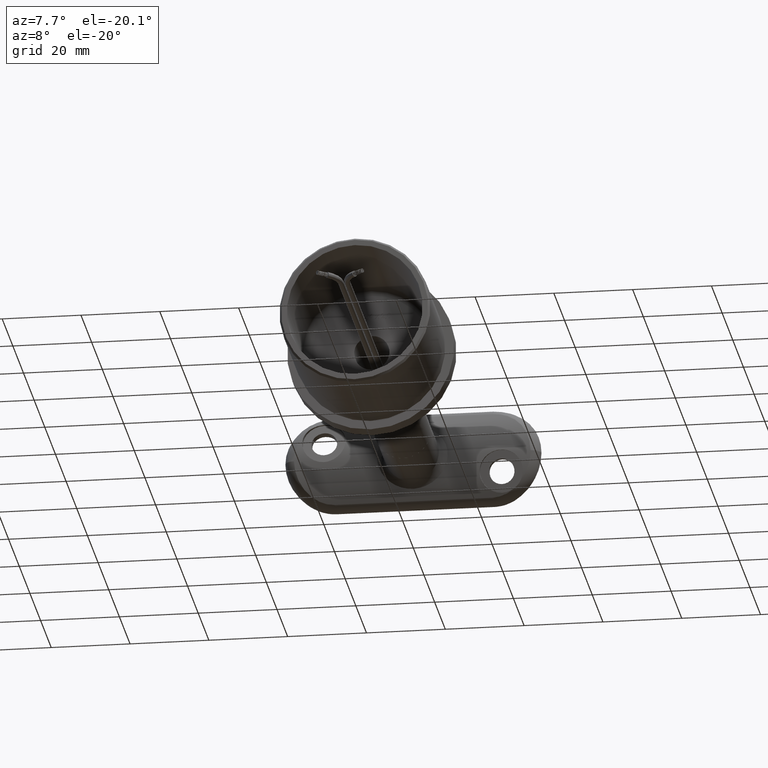
[diagram: clean part render]
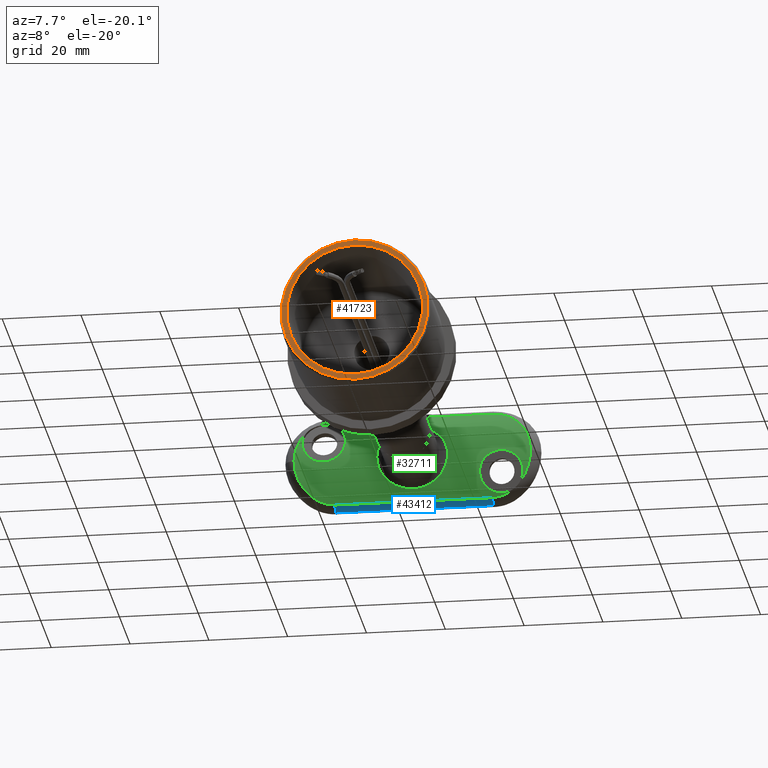
[diagram: same view with three faces highlighted in distinct colors, each labeled with its STEP entity id]
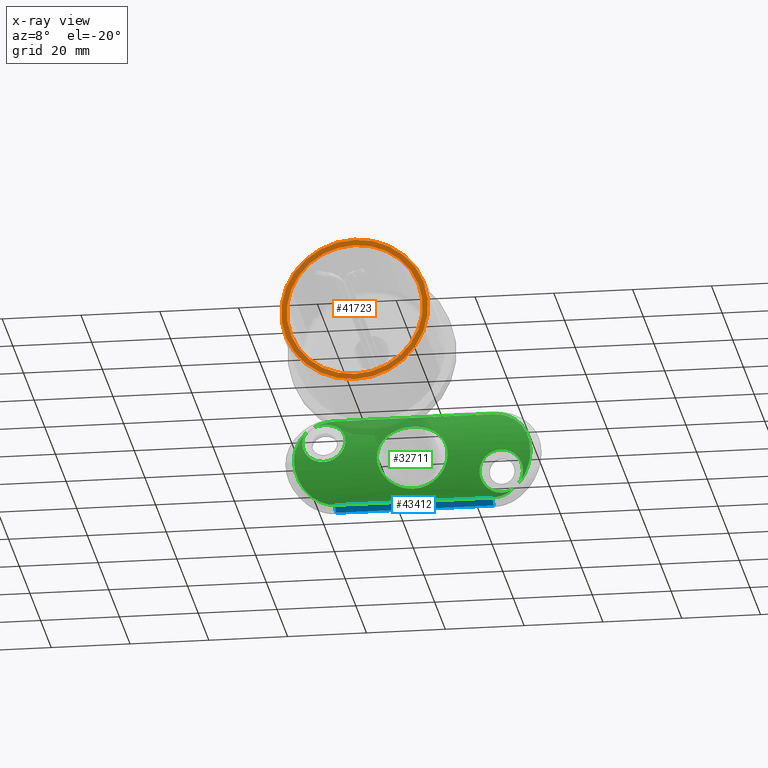
[diagram: x-ray of the same camera — body ghosted, the three highlighted faces saturated]
A machine part, auxiliary view with three faces highlighted in distinct colors.
The next image is the same camera in x-ray (body ghosted, the three faces saturated) — at least one of them is partly hidden behind the body in this view.
Their STEP definitions:

[orange] entity #41723 — the highlighted planar face has unit normal (0, -1, 0).
#365 = AXIS2_PLACEMENT_3D ( 'NONE', #17922, #21964, #14045 ) ;
#554 = EDGE_LOOP ( 'NONE', ( #36121 ) ) ;
#813 = DIRECTION ( 'NONE',  ( 0.0000000000000000000, 0.0000000000000000000, -1.000000000000000000 ) ) ;
#2994 = ORIENTED_EDGE ( 'NONE', *, *, #28522, .F. ) ;
#6575 = FACE_OUTER_BOUND ( 'NONE', #554, .T. ) ;
#8799 = CIRCLE ( 'NONE', #16784, 17.25000000000000000 ) ;
#13953 = DIRECTION ( 'NONE',  ( 0.0000000000000000000, -1.000000000000000000, -0.0000000000000000000 ) ) ;
#14045 = DIRECTION ( 'NONE',  ( 0.0000000000000000000, 0.0000000000000000000, -1.000000000000000000 ) ) ;
#15799 = EDGE_LOOP ( 'NONE', ( #2994 ) ) ;
#16784 = AXIS2_PLACEMENT_3D ( 'NONE', #46777, #46593, #813 ) ;
#17922 = CARTESIAN_POINT ( 'NONE',  ( 0.0000000000000000000, -29.99999999999999600, 0.0000000000000000000 ) ) ;
#21964 = DIRECTION ( 'NONE',  ( -0.0000000000000000000, -1.000000000000000000, -0.0000000000000000000 ) ) ;
#26864 = VERTEX_POINT ( 'NONE', #42041 ) ;
#28522 = EDGE_CURVE ( 'NONE', #26864, #26864, #8799, .T. ) ;
#30218 = AXIS2_PLACEMENT_3D ( 'NONE', #48009, #13953, #43570 ) ;
#31227 = PLANE ( 'NONE',  #30218 ) ;
#33007 = EDGE_CURVE ( 'NONE', #53824, #53824, #34265, .T. ) ;
#34265 = CIRCLE ( 'NONE', #365, 18.64999999999999900 ) ;
#36121 = ORIENTED_EDGE ( 'NONE', *, *, #33007, .T. ) ;
#41723 = ADVANCED_FACE ( 'NONE', ( #6575, #50016 ), #31227, .T. ) ;
#42041 = CARTESIAN_POINT ( 'NONE',  ( 0.0000000000000000000, -29.99999999999999600, -17.25000000000000000 ) ) ;
#43570 = DIRECTION ( 'NONE',  ( 0.0000000000000000000, 0.0000000000000000000, -1.000000000000000000 ) ) ;
#46074 = CARTESIAN_POINT ( 'NONE',  ( 0.0000000000000000000, -29.99999999999999600, -18.64999999999999900 ) ) ;
#46593 = DIRECTION ( 'NONE',  ( -0.0000000000000000000, -1.000000000000000000, -0.0000000000000000000 ) ) ;
#46777 = CARTESIAN_POINT ( 'NONE',  ( 0.0000000000000000000, -29.99999999999999600, 0.0000000000000000000 ) ) ;
#48009 = CARTESIAN_POINT ( 'NONE',  ( 18.64999999999999900, -29.99999999999999600, 0.0000000000000000000 ) ) ;
#50016 = FACE_BOUND ( 'NONE', #15799, .T. ) ;
#53824 = VERTEX_POINT ( 'NONE', #46074 ) ;

[blue] entity #43412 — the highlighted cylindrical surface (edge-blend (fillet) strip) has radius 2.5 mm, axis along (-1, -0, -0).
#221 = DIRECTION ( 'NONE',  ( -1.000000000000000000, 0.0000000000000000000, 0.0000000000000000000 ) ) ;
#865 = DIRECTION ( 'NONE',  ( 0.0000000000000000000, 0.0000000000000000000, -1.000000000000000000 ) ) ;
#4052 = EDGE_CURVE ( 'NONE', #28528, #50793, #48681, .T. ) ;
#4545 = CARTESIAN_POINT ( 'NONE',  ( 9.999999999999998200, 2.506685687123322700, -20.00000000000000400 ) ) ;
#5467 = ORIENTED_EDGE ( 'NONE', *, *, #17825, .F. ) ;
#9423 = CARTESIAN_POINT ( 'NONE',  ( 11.17924528301886700, 0.3022854143784315400, -20.00000000000000400 ) ) ;
#11109 = CYLINDRICAL_SURFACE ( 'NONE', #19717, 2.500000000000000400 ) ;
#13382 = LINE ( 'NONE', #38410, #21318 ) ;
#13645 = ORIENTED_EDGE ( 'NONE', *, *, #14682, .F. ) ;
#13880 = CARTESIAN_POINT ( 'NONE',  ( 12.49999999999999800, 2.506685687123324500, 20.00000000000000000 ) ) ;
#13899 = DIRECTION ( 'NONE',  ( -1.000000000000000000, 0.0000000000000000000, 0.0000000000000000000 ) ) ;
#14682 = EDGE_CURVE ( 'NONE', #31779, #50793, #13382, .T. ) ;
#16243 = CIRCLE ( 'NONE', #40645, 2.500000000000000400 ) ;
#16949 = CARTESIAN_POINT ( 'NONE',  ( 9.999999999999998200, 2.506685687123321400, 32.50000000000000000 ) ) ;
#17825 = EDGE_CURVE ( 'NONE', #28528, #31638, #21782, .T. ) ;
#19371 = EDGE_LOOP ( 'NONE', ( #52197, #5467, #49297, #13645 ) ) ;
#19717 = AXIS2_PLACEMENT_3D ( 'NONE', #16949, #29613, #221 ) ;
#21318 = VECTOR ( 'NONE', #34354, 1000.000000000000000 ) ;
#21782 = LINE ( 'NONE', #22782, #38903 ) ;
#22782 = CARTESIAN_POINT ( 'NONE',  ( 11.17924528301886500, 0.3022854143784302600, 32.50000000000000000 ) ) ;
#25368 = EDGE_CURVE ( 'NONE', #31779, #31638, #16243, .T. ) ;
#28528 = VERTEX_POINT ( 'NONE', #9423 ) ;
#29613 = DIRECTION ( 'NONE',  ( -0.0000000000000000000, -0.0000000000000000000, -1.000000000000000000 ) ) ;
#31638 = VERTEX_POINT ( 'NONE', #37625 ) ;
#31779 = VERTEX_POINT ( 'NONE', #13880 ) ;
#31793 = DIRECTION ( 'NONE',  ( 0.0000000000000000000, 0.0000000000000000000, 1.000000000000000000 ) ) ;
#32458 = CARTESIAN_POINT ( 'NONE',  ( 12.49999999999999800, 2.506685687123324500, -20.00000000000000400 ) ) ;
#34354 = DIRECTION ( 'NONE',  ( 0.0000000000000000000, 0.0000000000000000000, -1.000000000000000000 ) ) ;
#37625 = CARTESIAN_POINT ( 'NONE',  ( 11.17924528301886700, 0.3022854143784315400, 20.00000000000000000 ) ) ;
#38410 = CARTESIAN_POINT ( 'NONE',  ( 12.49999999999999800, 2.506685687123324500, 32.50000000000000000 ) ) ;
#38574 = CARTESIAN_POINT ( 'NONE',  ( 9.999999999999998200, 2.506685687123321800, 20.00000000000000000 ) ) ;
#38903 = VECTOR ( 'NONE', #31793, 1000.000000000000000 ) ;
#38945 = DIRECTION ( 'NONE',  ( -0.0000000000000000000, 0.0000000000000000000, 1.000000000000000000 ) ) ;
#40645 = AXIS2_PLACEMENT_3D ( 'NONE', #38574, #865, #13899 ) ;
#42627 = DIRECTION ( 'NONE',  ( 1.000000000000000000, 0.0000000000000000000, 0.0000000000000000000 ) ) ;
#43412 = ADVANCED_FACE ( 'NONE', ( #45302 ), #11109, .T. ) ;
#45302 = FACE_OUTER_BOUND ( 'NONE', #19371, .T. ) ;
#48681 = CIRCLE ( 'NONE', #52014, 2.500000000000000400 ) ;
#49297 = ORIENTED_EDGE ( 'NONE', *, *, #4052, .T. ) ;
#50793 = VERTEX_POINT ( 'NONE', #32458 ) ;
#52014 = AXIS2_PLACEMENT_3D ( 'NONE', #4545, #38945, #42627 ) ;
#52197 = ORIENTED_EDGE ( 'NONE', *, *, #25368, .T. ) ;

[green] entity #32711 — the highlighted cylindrical surface (partial cylindrical patch) has radius 23.7 mm, axis along (-1, -0, -0).
#17 = CARTESIAN_POINT ( 'NONE',  ( -9.370187996682782100, -0.5690049590426146100, -25.45398073234969200 ) ) ;
#271 = CARTESIAN_POINT ( 'NONE',  ( 8.218265259046328100, -1.036237951071030000, -26.80927702822409100 ) ) ;
#347 = CARTESIAN_POINT ( 'NONE',  ( 9.961023141438030100, -0.3054140723247031900, 20.89677686096019100 ) ) ;
#390 = CARTESIAN_POINT ( 'NONE',  ( -3.862101540547632000, -2.185516348407287300, -17.09727149796646000 ) ) ;
#537 = CARTESIAN_POINT ( 'NONE',  ( 4.968030698272814400, -1.974579828743330700, -7.215625940148811400 ) ) ;
#717 = CARTESIAN_POINT ( 'NONE',  ( 5.837926458261642400, -1.772185946377429900, 17.06940875585207000 ) ) ;
#1069 = CARTESIAN_POINT ( 'NONE',  ( 9.905594503641438600, -0.3320655028294224900, 24.65932854693940600 ) ) ;
#1073 = CARTESIAN_POINT ( 'NONE',  ( 7.751731519603566800, -1.198179809334370700, 27.16979874977519000 ) ) ;
#1253 = CARTESIAN_POINT ( 'NONE',  ( 0.1303266919078817100, -2.500373700690121700, 19.79406846555928800 ) ) ;
#1620 = CARTESIAN_POINT ( 'NONE',  ( 7.476314322400269500, -1.291900112270155200, 27.44228244790018700 ) ) ;
#2170 = CARTESIAN_POINT ( 'NONE',  ( 8.014227332648181000, -1.103859761499459400, 26.97191979512733800 ) ) ;
#3134 = CARTESIAN_POINT ( 'NONE',  ( -1.427006138159055700, -2.458640998651842900, 8.871318446048977800 ) ) ;
#3310 = CARTESIAN_POINT ( 'NONE',  ( 3.552394138635237100, -2.233680693875239600, 8.139554048834620300 ) ) ;
#3483 = CARTESIAN_POINT ( 'NONE',  ( 2.784013627388787400, -2.341598247301693600, 8.500133982354100200 ) ) ;
#3957 = CARTESIAN_POINT ( 'NONE',  ( 6.315412041614559200, -1.645155223349698000, -28.25753571695142300 ) ) ;
#4047 = CARTESIAN_POINT ( 'NONE',  ( -7.664185970871398200, -1.228563436823041600, -17.77408746815163100 ) ) ;
#4114 = CARTESIAN_POINT ( 'NONE',  ( 9.916560389076327200, -0.3282711105603398100, -24.66578054736753200 ) ) ;
#4183 = CARTESIAN_POINT ( 'NONE',  ( 4.854836688620381800, -1.999916146307695500, 16.98995641155992000 ) ) ;
#4492 = CARTESIAN_POINT ( 'NONE',  ( -1.414169896664826000, -2.468012762435230800, 29.93975543317519700 ) ) ;
#4554 = CARTESIAN_POINT ( 'NONE',  ( 9.603017931148079000, -0.4680232839582748100, 19.95654763865557500 ) ) ;
#4561 = CARTESIAN_POINT ( 'NONE',  ( 8.049428857506830700, -1.091431838228508900, 2.265757950814117900 ) ) ;
#4734 = CARTESIAN_POINT ( 'NONE',  ( 8.250110507916552600, -1.017941282579681600, -1.136081012000657300 ) ) ;
#4761 = CARTESIAN_POINT ( 'NONE',  ( -9.686022297465177300, -0.4307090813889881700, -24.86482861441113800 ) ) ;
#4913 = EDGE_CURVE ( 'NONE', #21416, #38604, #6445, .T. ) ;
#4952 = CARTESIAN_POINT ( 'NONE',  ( 0.4845863638988725500, -2.496248905460648700, -23.74325496155335500 ) ) ;
#5039 = CARTESIAN_POINT ( 'NONE',  ( -7.441043657384822700, -1.303242206625867100, 27.46981969670581200 ) ) ;
#5097 = CARTESIAN_POINT ( 'NONE',  ( 3.639473031669293100, -2.221126179565911400, 27.85252258307059800 ) ) ;
#5131 = CARTESIAN_POINT ( 'NONE',  ( -0.3699238076160045200, -2.497754405056258800, -25.58575428268033400 ) ) ;
#5282 = CARTESIAN_POINT ( 'NONE',  ( 11.17924528301887200, 0.3022854143784315400, 21.00006738519948600 ) ) ;
#5286 = CARTESIAN_POINT ( 'NONE',  ( 0.7135294619659117200, -2.490425030393305800, 18.96567124585279300 ) ) ;
#5460 = CARTESIAN_POINT ( 'NONE',  ( 10.23956368285324800, -0.1742016788222979800, 24.01994789659587300 ) ) ;
#5464 = CARTESIAN_POINT ( 'NONE',  ( 5.945737943505376300, -1.744424834783779400, 27.91039830902984400 ) ) ;
#5650 = CARTESIAN_POINT ( 'NONE',  ( 7.036714163764739500, -1.431794197007595800, 27.55338196448438000 ) ) ;
#5669 = DIRECTION ( 'NONE',  ( -0.0000000000000000000, -0.0000000000000000000, -1.000000000000000000 ) ) ;
#5845 = CARTESIAN_POINT ( 'NONE',  ( 4.000938554433910900, -2.162409846174863800, 29.34347307046188600 ) ) ;
#6020 = CARTESIAN_POINT ( 'NONE',  ( 1.486384379002339000, -2.464646477267250300, 29.93346473173616200 ) ) ;
#6445 = B_SPLINE_CURVE_WITH_KNOTS ( 'NONE', 3,
 ( #17, #46532, #4761, #29408, #16922, #33846, #13054, #50777, #46712, #21166, #8636, #34218, #8997, #38096, #8819, #13232, #45978, #20816, #4047, #50233, #29222, #12877, #42295, #54465, #17101, #33496, #390, #25537, #46163, #17461, #22228, #47064, #30120, #18189, #34760, #43022, #34385, #46879, #9549, #38815, #34572, #26434, #4952, #17819, #47248, #5131, #21858, #25889, #9177, #13950, #38628, #9355, #26069, #13412, #43393, #13593, #22400, #30675, #42669, #22045, #30484, #47624, #42841, #9907 ),
 .UNSPECIFIED., .F., .F.,
 ( 4, 2, 2, 2, 2, 2, 2, 2, 2, 2, 2, 2, 2, 2, 2, 2, 2, 2, 2, 2, 2, 2, 2, 2, 2, 2, 2, 2, 2, 2, 2, 4 ),
 ( 0.01414543998572449300, 0.01515782545689428600, 0.01617021092806408100, 0.01718259639923387300, 0.01819498187040366800, 0.01920736734157346300, 0.02021975281274325500, 0.02123213828391305000, 0.02224452375508284600, 0.02325690922625263400, 0.02426929469742242600, 0.02528168016859221700, 0.02629406563976200600, 0.02730645111093179400, 0.02831883658210158600, 0.02933122205327137700, 0.03034360752444116600, 0.03135599299561095400, 0.03236837846678074900, 0.03338076393795053700, 0.03439314940912033300, 0.03641792035145990900, 0.03743030582262970400, 0.03844269129379949300, 0.03945507676496929500, 0.04046746223613908300, 0.04147984770730887800, 0.04249223317847867400, 0.04350461864964846900, 0.04451700412081826400, 0.04552938959198805200, 0.04654177506315784800 ),
 .UNSPECIFIED. ) ;
#6701 = VERTEX_POINT ( 'NONE', #17126 ) ;
#7526 = CARTESIAN_POINT ( 'NONE',  ( -2.247156208606570600, -2.399736286477642400, -8.685456325000243900 ) ) ;
#7717 = CARTESIAN_POINT ( 'NONE',  ( -3.816672420367261100, -2.196358643521116900, -8.014738685611316500 ) ) ;
#7901 = CARTESIAN_POINT ( 'NONE',  ( -8.299850924278866100, -0.9991548195171665600, 0.5659017546229334600 ) ) ;
#7994 = CARTESIAN_POINT ( 'NONE',  ( 4.793278954927297200, -2.019687223975838600, -29.05599425181315400 ) ) ;
#8070 = CARTESIAN_POINT ( 'NONE',  ( -8.299369122536724300, -0.9993349502643645900, -0.5741507441463682400 ) ) ;
#8249 = CARTESIAN_POINT ( 'NONE',  ( 7.265928655325820000, -1.360770637272532600, -4.388271838149147000 ) ) ;
#8428 = CARTESIAN_POINT ( 'NONE',  ( 8.299633651958950900, -0.9992360509063716900, -0.5699602879035066100 ) ) ;
#8529 = ORIENTED_EDGE ( 'NONE', *, *, #17825, .T. ) ;
#8606 = CARTESIAN_POINT ( 'NONE',  ( 10.15098862719247000, -0.2161375843750715800, 21.89035155531485100 ) ) ;
#8636 = CARTESIAN_POINT ( 'NONE',  ( -9.960834403341619800, -0.3054936624092596300, -20.89682144471377600 ) ) ;
#8781 = CARTESIAN_POINT ( 'NONE',  ( 7.119386297662248200, -1.405903099910041300, 4.634785051595590000 ) ) ;
#8786 = B_SPLINE_CURVE_WITH_KNOTS ( 'NONE', 3,
 ( #9147, #46677, #13371, #17066, #25678, #33812, #8964, #16887, #8606, #25504, #347, #29719, #4554, #34003, #42809, #17424, #51111, #38236, #13021, #17240, #46851, #25852, #717, #54610, #4183, #30093, #34353, #38597, #47027, #18152, #10039, #43352, #39497, #5286, #51285, #1253, #17789, #43717, #17967, #26220, #34731, #51460, #9509, #39124, #38955, #14287, #22547, #47210, #38779, #13748, #47587, #30448, #13561, #26771, #30642, #5097, #18519, #22009, #52016, #47962, #5464, #42987, #30822, #51645, #5650, #43171, #1073, #47403 ),
 .UNSPECIFIED., .F., .F.,
 ( 4, 2, 2, 2, 2, 2, 2, 2, 2, 2, 2, 2, 2, 2, 2, 2, 2, 2, 2, 2, 2, 2, 2, 2, 2, 2, 2, 2, 2, 2, 2, 2, 2, 4 ),
 ( 0.03139665767513474800, 0.03240913222489138400, 0.03342160677464801200, 0.03443408132440464700, 0.03544655587416127600, 0.03645903042391791100, 0.03747150497367454000, 0.03848397952343117500, 0.03949645407318780300, 0.04050892862294443900, 0.04152140317270106700, 0.04253387772245770200, 0.04354635227221433100, 0.04455882682197096600, 0.04557130137172760200, 0.04658377592148423000, 0.04759625047124085900, 0.04860872502099749400, 0.04962119957075412900, 0.05063367412051075800, 0.05164614867026738600, 0.05265862322002402100, 0.05367109776978065700, 0.05468357231953728500, 0.05569604686929392100, 0.05670852141905055600, 0.05772099596880718400, 0.05873347051856381300, 0.05974594506832044800, 0.06075841961807708400, 0.06177089416783371200, 0.06227713144271203300, 0.06278336871759035400, 0.06379584326734696900 ),
 .UNSPECIFIED. ) ;
#8819 = CARTESIAN_POINT ( 'NONE',  ( -9.091132872874057500, -0.6881763097075004300, -19.10698749763234600 ) ) ;
#8908 = CARTESIAN_POINT ( 'NONE',  ( -2.454343262886495400, -2.375143166114199700, 29.76113485802292000 ) ) ;
#8964 = CARTESIAN_POINT ( 'NONE',  ( 10.16827137802361500, -0.2078555156877241500, 22.91285635091617600 ) ) ;
#8997 = CARTESIAN_POINT ( 'NONE',  ( -9.605227937684022200, -0.4670591663149271100, -19.96060078847122600 ) ) ;
#9147 = CARTESIAN_POINT ( 'NONE',  ( 9.370187996682782100, -0.5690049590426095000, 25.45398073234968500 ) ) ;
#9177 = CARTESIAN_POINT ( 'NONE',  ( -1.269663875757292400, -2.467464373479828900, -26.60235066082677900 ) ) ;
#9264 = CARTESIAN_POINT ( 'NONE',  ( -11.17924528301887000, 0.3022854143784353100, 20.00000000000000000 ) ) ;
#9355 = CARTESIAN_POINT ( 'NONE',  ( -2.686253516050654400, -2.349180305849656800, -27.52165140337009000 ) ) ;
#9423 = CARTESIAN_POINT ( 'NONE',  ( 11.17924528301886700, 0.3022854143784315400, -20.00000000000000400 ) ) ;
#9442 = CARTESIAN_POINT ( 'NONE',  ( -2.800063946298064500, -2.336517082529631300, 29.68644355985237100 ) ) ;
#9509 = CARTESIAN_POINT ( 'NONE',  ( -0.5680597260803991200, -2.493259851257542800, 23.06223676753007400 ) ) ;
#9549 = CARTESIAN_POINT ( 'NONE',  ( 0.3964777178215672700, -2.496790554437536200, -21.04402247542359900 ) ) ;
#9686 = CARTESIAN_POINT ( 'NONE',  ( 9.652584009124435500, -0.4474512301941706600, 25.06576932310941800 ) ) ;
#9792 = B_SPLINE_CURVE_WITH_KNOTS ( 'NONE', 3,
 ( #46056, #33927, #12769, #49953, #24704, #25055, #46420, #7994, #37980, #3957, #21234, #25431, #41660, #271, #37797, #16811, #4114, #54357, #29114, #37445, #54170, #33570 ),
 .UNSPECIFIED., .F., .F.,
 ( 4, 2, 2, 2, 2, 2, 2, 2, 2, 2, 4 ),
 ( 1.345411456867269700E-019, 0.002115654732853067100, 0.003173482099279599300, 0.004231309465706131600, 0.006346964198559196900, 0.007404791564985725700, 0.008462618931412256200, 0.01057827366426532200, 0.01269392839711839000, 0.01480958312997145800, 0.01692523786282452300 ),
 .UNSPECIFIED. ) ;
#9907 = CARTESIAN_POINT ( 'NONE',  ( -8.014227332648195200, -1.103859761499456700, -26.97191979512732700 ) ) ;
#10039 = CARTESIAN_POINT ( 'NONE',  ( 1.989714912003635000, -2.417920515556443800, 17.85497671364711900 ) ) ;
#11397 = VERTEX_POINT ( 'NONE', #2170 ) ;
#11587 = CARTESIAN_POINT ( 'NONE',  ( -2.168404344971008900E-016, -2.499999999999999600, -9.000000000000003600 ) ) ;
#11774 = CARTESIAN_POINT ( 'NONE',  ( -7.802305575444727000, -1.179113321041305000, -3.081778639690369500 ) ) ;
#11944 = CARTESIAN_POINT ( 'NONE',  ( 4.523191596112218000, -2.065488990025145600, 7.551796718237799400 ) ) ;
#12006 = CARTESIAN_POINT ( 'NONE',  ( -11.01542458407866900, 0.2125195211856964500, -21.96283831670069700 ) ) ;
#12125 = CARTESIAN_POINT ( 'NONE',  ( -6.678131923753743300, -1.540322480049649800, -5.351823427309144100 ) ) ;
#12445 = VERTEX_POINT ( 'NONE', #24299 ) ;
#12496 = CARTESIAN_POINT ( 'NONE',  ( 3.815376296808556500, -2.196591366590559400, -8.015544338472107500 ) ) ;
#12769 = CARTESIAN_POINT ( 'NONE',  ( 1.414169896664827300, -2.468012762435233900, -29.93975543317519300 ) ) ;
#12848 = B_SPLINE_CURVE_WITH_KNOTS ( 'NONE', 3,
 ( #53952, #37213, #12006, #20657, #50090, #24843, #16223, #49904, #54315, #29073 ),
 .UNSPECIFIED., .F., .F.,
 ( 4, 2, 2, 2, 4 ),
 ( 0.0000000000000000000, 0.002942103943280244000, 0.003677629929100304000, 0.004413155914920364500, 0.005884207886560475900 ),
 .UNSPECIFIED. ) ;
#12877 = CARTESIAN_POINT ( 'NONE',  ( -6.163915170810398100, -1.686707006718670500, -17.13815369622202700 ) ) ;
#12964 = CARTESIAN_POINT ( 'NONE',  ( -8.693875653268115400, -0.8526882657569480100, 26.32130095223247000 ) ) ;
#13021 = CARTESIAN_POINT ( 'NONE',  ( 7.659803264995312900, -1.230066168857498500, 17.77131191034010300 ) ) ;
#13026 = CARTESIAN_POINT ( 'NONE',  ( 8.100794035889997200, -1.072627719811988900, -1.978904667327243900 ) ) ;
#13054 = CARTESIAN_POINT ( 'NONE',  ( -10.16826309462256700, -0.2078594497520447300, -22.90965157119084200 ) ) ;
#13145 = CARTESIAN_POINT ( 'NONE',  ( -8.218265259046329900, -1.036237951071027600, 26.80927702822408400 ) ) ;
#13232 = CARTESIAN_POINT ( 'NONE',  ( -8.672553963031502300, -0.8573744320442283600, -18.60441913516585500 ) ) ;
#13371 = CARTESIAN_POINT ( 'NONE',  ( 9.683781227096497800, -0.4317133234782036800, 24.86979834110077500 ) ) ;
#13412 = CARTESIAN_POINT ( 'NONE',  ( -3.636911901941544100, -2.221522486289449800, -27.85188449894366900 ) ) ;
#13561 = CARTESIAN_POINT ( 'NONE',  ( 2.086712814031847600, -2.409851846872543800, 27.20528490989597600 ) ) ;
#13593 = CARTESIAN_POINT ( 'NONE',  ( -4.629714385059514800, -2.045823945607871100, -28.00193664561188800 ) ) ;
#13748 = CARTESIAN_POINT ( 'NONE',  ( 1.020162004188103000, -2.479092139745819400, 26.36712261179625500 ) ) ;
#13868 = CARTESIAN_POINT ( 'NONE',  ( -6.601037008254323300, -1.564437481532556800, -28.07754086575078000 ) ) ;
#13950 = CARTESIAN_POINT ( 'NONE',  ( -1.801147025975210300, -2.432959730388418500, -27.01987860859532700 ) ) ;
#14103 = CARTESIAN_POINT ( 'NONE',  ( 7.751333883195352200, -1.198322688127786400, 27.21372412310421400 ) ) ;
#14287 = CARTESIAN_POINT ( 'NONE',  ( -0.1285436105055397000, -2.499945198875505700, 24.69733444047084000 ) ) ;
#14353 = B_SPLINE_CURVE_WITH_KNOTS ( 'NONE', 3,
 ( #47597, #14103, #1620, #26233, #43544, #47791, #22559, #5845, #31955, #35284, #27692, #6020, #47977, #22931 ),
 .UNSPECIFIED., .F., .F.,
 ( 4, 2, 2, 2, 2, 2, 4 ),
 ( 0.007972807475119912300, 0.009077441987378875200, 0.01018207649963783800, 0.01239134552415576500, 0.01349598003641472700, 0.01460061454867369100, 0.01680988357319161300 ),
 .UNSPECIFIED. ) ;
#14974 = ORIENTED_EDGE ( 'NONE', *, *, #50007, .T. ) ;
#15625 = CARTESIAN_POINT ( 'NONE',  ( -6.346803555843795400, -1.635015786125217000, 5.806641011491525000 ) ) ;
#15807 = CARTESIAN_POINT ( 'NONE',  ( -7.888596471051433100, -1.148743140252118400, -2.811822021088528100 ) ) ;
#16159 = CARTESIAN_POINT ( 'NONE',  ( -2.794125277634985900, -2.340379140394882800, -8.496171562457400100 ) ) ;
#16223 = CARTESIAN_POINT ( 'NONE',  ( -10.23956368285324500, -0.1742016788222957900, -24.01994789659588000 ) ) ;
#16522 = CARTESIAN_POINT ( 'NONE',  ( 5.606495602466520900, -1.830599603390703900, 6.662210591591844800 ) ) ;
#16708 = CARTESIAN_POINT ( 'NONE',  ( 3.047021754430676600, -2.304734722889201700, -8.377005172524773600 ) ) ;
#16725 = CARTESIAN_POINT ( 'NONE',  ( 9.370187996682782100, -0.5690049590426095000, 25.45398073234968500 ) ) ;
#16811 = CARTESIAN_POINT ( 'NONE',  ( 9.548875417448986300, -0.4961635291399120200, -25.24198090127419600 ) ) ;
#16887 = CARTESIAN_POINT ( 'NONE',  ( 10.17646969324111000, -0.2039595678052224500, 22.22919096326817400 ) ) ;
#16922 = CARTESIAN_POINT ( 'NONE',  ( -10.01040199742908000, -0.2822381719887521700, -23.91653195326093600 ) ) ;
#17066 = CARTESIAN_POINT ( 'NONE',  ( 9.918679055671754300, -0.3250190697706335000, 24.24520692328584900 ) ) ;
#17101 = CARTESIAN_POINT ( 'NONE',  ( -4.852248478789682000, -2.000417393767810900, -16.99016309047038900 ) ) ;
#17126 = CARTESIAN_POINT ( 'NONE',  ( 1.233335875097729600E-015, -2.499999999999998700, -30.00000000000000700 ) ) ;
#17240 = CARTESIAN_POINT ( 'NONE',  ( 7.088146789577472800, -1.417219755910784200, 17.46148396392883500 ) ) ;
#17247 = CARTESIAN_POINT ( 'NONE',  ( 5.185836508713929800, -1.926662296755644200, -7.033088896640272500 ) ) ;
#17258 = AXIS2_PLACEMENT_3D ( 'NONE', #39327, #5669, #43913 ) ;
#17424 = CARTESIAN_POINT ( 'NONE',  ( 8.668317556381721200, -0.8590530296092068200, 18.59979072501214100 ) ) ;
#17461 = CARTESIAN_POINT ( 'NONE',  ( -2.285572366128263400, -2.391509229511525000, -17.67943294965340700 ) ) ;
#17534 = VECTOR ( 'NONE', #39594, 1000.000000000000000 ) ;
#17661 = VERTEX_POINT ( 'NONE', #22054 ) ;
#17789 = CARTESIAN_POINT ( 'NONE',  ( -0.03247338652868458900, -2.500341392764693400, 20.09816034065792700 ) ) ;
#17819 = CARTESIAN_POINT ( 'NONE',  ( 0.1263720433855495000, -2.499963905880868300, -24.70276259988441600 ) ) ;
#17825 = EDGE_CURVE ( 'NONE', #28528, #31638, #21782, .T. ) ;
#17913 = CARTESIAN_POINT ( 'NONE',  ( -5.671403341462330200, -1.820390914974462800, -28.64366167993925300 ) ) ;
#17967 = CARTESIAN_POINT ( 'NONE',  ( -0.3964596045365944600, -2.496790282715214200, 21.04423860579940000 ) ) ;
#18152 = CARTESIAN_POINT ( 'NONE',  ( 2.279572313516338600, -2.392134328613709600, 17.68248872969346400 ) ) ;
#18189 = CARTESIAN_POINT ( 'NONE',  ( -0.7182365213452010000, -2.490269991016195800, -18.96033815233369800 ) ) ;
#18409 = B_SPLINE_CURVE_WITH_KNOTS ( 'NONE', 3,
 ( #43480, #51961, #39622, #47527, #13868, #17913, #22139, #51587, #26345, #51775, #39441, #43843, #26528, #22684 ),
 .UNSPECIFIED., .F., .F.,
 ( 4, 2, 2, 2, 2, 2, 4 ),
 ( 0.007972807475119893200, 0.009077441987378861300, 0.01018207649963782800, 0.01239134552415575900, 0.01349598003641472100, 0.01460061454867368400, 0.01680988357319161300 ),
 .UNSPECIFIED. ) ;
#18519 = CARTESIAN_POINT ( 'NONE',  ( 3.965222619860485000, -2.168355936523303400, 27.92256141787912000 ) ) ;
#18703 = CARTESIAN_POINT ( 'NONE',  ( -11.17924528301886900, 0.3022854143784342000, -20.00000000000000400 ) ) ;
#20219 = VERTEX_POINT ( 'NONE', #16725 ) ;
#20246 = CARTESIAN_POINT ( 'NONE',  ( -4.974274191022315600, -1.973253289104983400, -7.210640786219716600 ) ) ;
#20425 = CARTESIAN_POINT ( 'NONE',  ( -4.301531361557192800, -2.110859852843166400, 7.719685376661169100 ) ) ;
#20448 = CYLINDRICAL_SURFACE ( 'NONE', #17258, 23.70000000000000300 ) ;
#20603 = CARTESIAN_POINT ( 'NONE',  ( -8.249639163762992700, -1.018115832199235800, -1.139473985164724600 ) ) ;
#20657 = CARTESIAN_POINT ( 'NONE',  ( -10.62281427660789200, 0.01383560974959778400, -23.12504994261674800 ) ) ;
#20787 = CARTESIAN_POINT ( 'NONE',  ( 1.968745039653716900, -2.419706041966410900, -8.748463716328737800 ) ) ;
#20816 = CARTESIAN_POINT ( 'NONE',  ( -7.933003928240074400, -1.134499435396368200, -17.95529398685316700 ) ) ;
#20965 = CARTESIAN_POINT ( 'NONE',  ( 7.251975764121196400, -1.363582580471333300, 4.386447158349655600 ) ) ;
#21134 = CARTESIAN_POINT ( 'NONE',  ( 5.194979089480568700, -1.928146335155038500, 7.043836540850452200 ) ) ;
#21166 = CARTESIAN_POINT ( 'NONE',  ( -10.04396237118651300, -0.2665409033892174900, -21.22641058357696400 ) ) ;
#21234 = CARTESIAN_POINT ( 'NONE',  ( 6.608709117414221600, -1.561838908836014900, -28.07187218626887000 ) ) ;
#21312 = CARTESIAN_POINT ( 'NONE',  ( 7.889023575429124700, -1.148592004395328600, -2.810387440551248800 ) ) ;
#21416 = VERTEX_POINT ( 'NONE', #38025 ) ;
#21491 = CARTESIAN_POINT ( 'NONE',  ( 6.355304290906780700, -1.635234230612751900, -5.817598354601544000 ) ) ;
#21782 = LINE ( 'NONE', #22782, #38903 ) ;
#21824 = CARTESIAN_POINT ( 'NONE',  ( 9.370187996682782100, -0.5690049590426095000, 25.45398073234968500 ) ) ;
#21858 = CARTESIAN_POINT ( 'NONE',  ( -0.5735551898243804700, -2.494130258991530200, -25.86277832110289400 ) ) ;
#22009 = CARTESIAN_POINT ( 'NONE',  ( 4.626540399774470700, -2.046465828816900900, 28.00180078624035600 ) ) ;
#22045 = CARTESIAN_POINT ( 'NONE',  ( -6.580991353823953300, -1.570319147718209900, -27.74056758686538500 ) ) ;
#22054 = CARTESIAN_POINT ( 'NONE',  ( 1.370373194553029100E-015, -2.499999999999996900, 30.00000000000000400 ) ) ;
#22139 = CARTESIAN_POINT ( 'NONE',  ( -5.021322582662604900, -1.972292335219198800, -28.95885722976600400 ) ) ;
#22228 = CARTESIAN_POINT ( 'NONE',  ( -1.994932886021519600, -2.417522730046331800, -17.85135395993058100 ) ) ;
#22400 = CARTESIAN_POINT ( 'NONE',  ( -4.960266673022909200, -1.977600268634173400, -28.01042789590048100 ) ) ;
#22547 = CARTESIAN_POINT ( 'NONE',  ( 0.01869670058242967800, -2.500650230526937400, 25.00280856854959300 ) ) ;
#22559 = CARTESIAN_POINT ( 'NONE',  ( 5.021322582662595100, -1.972292335219203700, 28.95885722976600000 ) ) ;
#22589 = ORIENTED_EDGE ( 'NONE', *, *, #38282, .T. ) ;
#22684 = CARTESIAN_POINT ( 'NONE',  ( 1.233335875097729600E-015, -2.499999999999998700, -30.00000000000000700 ) ) ;
#22716 = ORIENTED_EDGE ( 'NONE', *, *, #50331, .T. ) ;
#22782 = CARTESIAN_POINT ( 'NONE',  ( 11.17924528301886500, 0.3022854143784302600, 32.50000000000000000 ) ) ;
#22931 = CARTESIAN_POINT ( 'NONE',  ( 1.370373194553029100E-015, -2.499999999999996900, 30.00000000000000400 ) ) ;
#23545 = ORIENTED_EDGE ( 'NONE', *, *, #31290, .T. ) ;
#24072 = CARTESIAN_POINT ( 'NONE',  ( -5.192068076813626500, -1.925250698794125100, -7.027603008090931500 ) ) ;
#24248 = CARTESIAN_POINT ( 'NONE',  ( -7.509039810960102200, -1.279925765711808800, -3.875734562636836200 ) ) ;
#24299 = CARTESIAN_POINT ( 'NONE',  ( -11.17924528301887000, 0.3022854143784353100, 20.00000000000000000 ) ) ;
#24425 = CARTESIAN_POINT ( 'NONE',  ( -5.198080485860538500, -1.927458104942516600, 7.041205557456628100 ) ) ;
#24704 = CARTESIAN_POINT ( 'NONE',  ( 2.800063946298067200, -2.336517082529630400, -29.68644355985237500 ) ) ;
#24782 = CARTESIAN_POINT ( 'NONE',  ( -6.168430190193437700, -1.684006409803460400, 6.028519788565295900 ) ) ;
#24843 = CARTESIAN_POINT ( 'NONE',  ( -10.34326186395640200, -0.1241248627723315300, -23.80184639961072400 ) ) ;
#25055 = CARTESIAN_POINT ( 'NONE',  ( 3.481011988483135400, -2.245480375023329900, -29.50814648911082500 ) ) ;
#25132 = CARTESIAN_POINT ( 'NONE',  ( 8.038034200278040900, -1.095431454622266800, -2.259981966517026200 ) ) ;
#25215 = ORIENTED_EDGE ( 'NONE', *, *, #30610, .T. ) ;
#25320 = CARTESIAN_POINT ( 'NONE',  ( 1.141265007103272800, -2.478965271815079900, -8.935423653577066400 ) ) ;
#25431 = CARTESIAN_POINT ( 'NONE',  ( 7.171023150850882800, -1.390988771639801500, -27.67822096339100600 ) ) ;
#25446 = CARTESIAN_POINT ( 'NONE',  ( -9.916560389076329000, -0.3282711105603379800, 24.66578054736753600 ) ) ;
#25504 = CARTESIAN_POINT ( 'NONE',  ( 10.04365064218823100, -0.2666858392241208700, 21.22586362416678400 ) ) ;
#25507 = CARTESIAN_POINT ( 'NONE',  ( 0.5768861072293821600, -2.500000000000000000, -9.000000000000003600 ) ) ;
#25537 = CARTESIAN_POINT ( 'NONE',  ( -3.211583515008106900, -2.283695078016429100, -17.27181728770833000 ) ) ;
#25628 = CARTESIAN_POINT ( 'NONE',  ( -11.17924528301887200, 0.3022854143784364800, 20.71424296331141700 ) ) ;
#25678 = CARTESIAN_POINT ( 'NONE',  ( 10.01055961881000700, -0.2821650005001112800, 23.91609271528173500 ) ) ;
#25852 = CARTESIAN_POINT ( 'NONE',  ( 6.164349351039020600, -1.686596882987596600, 17.13822709770594700 ) ) ;
#25889 = CARTESIAN_POINT ( 'NONE',  ( -1.023962170526620600, -2.478941609775612500, -26.37108773870614800 ) ) ;
#25981 = CARTESIAN_POINT ( 'NONE',  ( -4.793278954927298100, -2.019687223975837700, 29.05599425181315400 ) ) ;
#26069 = CARTESIAN_POINT ( 'NONE',  ( -2.995691429073401100, -2.312138920566595900, -27.65071218247313200 ) ) ;
#26195 = ORIENTED_EDGE ( 'NONE', *, *, #33399, .T. ) ;
#26220 = CARTESIAN_POINT ( 'NONE',  ( -0.5385575425258202200, -2.493986699042523500, 21.70697542520643400 ) ) ;
#26233 = CARTESIAN_POINT ( 'NONE',  ( 6.901902038468652000, -1.474756773977705400, 27.87375902952356200 ) ) ;
#26345 = CARTESIAN_POINT ( 'NONE',  ( -3.653211640793991900, -2.219500904534994000, -29.45684906987662200 ) ) ;
#26422 = EDGE_LOOP ( 'NONE', ( #37862 ) ) ;
#26434 = CARTESIAN_POINT ( 'NONE',  ( 0.5999986999144911700, -2.492408229243812600, -23.07041383179993600 ) ) ;
#26528 = CARTESIAN_POINT ( 'NONE',  ( -0.7483233397469633000, -2.499999999999999600, -30.00000000000001400 ) ) ;
#26575 = CARTESIAN_POINT ( 'NONE',  ( 10.53469679119090900, -0.03020326485717139000, 23.35499530182082500 ) ) ;
#26771 = CARTESIAN_POINT ( 'NONE',  ( 2.681923733650178700, -2.349665808380370100, 27.51965156263899500 ) ) ;
#27635 = FACE_BOUND ( 'NONE', #26422, .T. ) ;
#27692 = CARTESIAN_POINT ( 'NONE',  ( 2.578567614624712500, -2.362145422496090100, 29.73602250292480800 ) ) ;
#28293 = CARTESIAN_POINT ( 'NONE',  ( -0.5768861072293844900, -2.499999999999999600, -9.000000000000003600 ) ) ;
#28462 = CARTESIAN_POINT ( 'NONE',  ( -5.799830253822833900, -1.780182052032678500, -6.444340830771713200 ) ) ;
#28528 = VERTEX_POINT ( 'NONE', #9423 ) ;
#28655 = CARTESIAN_POINT ( 'NONE',  ( 2.250001979478642800, -2.399572244535402200, 8.684943562465775800 ) ) ;
#28831 = CARTESIAN_POINT ( 'NONE',  ( -1.141407118325548300, -2.474202494709139900, 8.919853750647860100 ) ) ;
#29073 = CARTESIAN_POINT ( 'NONE',  ( -9.370187996682782100, -0.5690049590426146100, -25.45398073234969200 ) ) ;
#29114 = CARTESIAN_POINT ( 'NONE',  ( 10.77132139883643600, 0.08834779394812909700, -22.76498219411736900 ) ) ;
#29222 = CARTESIAN_POINT ( 'NONE',  ( -6.787942972036963100, -1.509448211101609400, -17.33420638546074200 ) ) ;
#29408 = CARTESIAN_POINT ( 'NONE',  ( -9.920649467764349100, -0.3241101430099424000, -24.23896045930071000 ) ) ;
#29666 = CARTESIAN_POINT ( 'NONE',  ( -10.52747193195371400, -0.03621815865318572100, 23.43161115571737000 ) ) ;
#29719 = CARTESIAN_POINT ( 'NONE',  ( 9.739600536925008700, -0.4065961647718907000, 20.25959943733485200 ) ) ;
#30009 = VERTEX_POINT ( 'NONE', #18703 ) ;
#30093 = CARTESIAN_POINT ( 'NONE',  ( 4.187473321295143200, -2.129608133278288100, 17.04135035349607800 ) ) ;
#30120 = CARTESIAN_POINT ( 'NONE',  ( -1.185858542284623500, -2.471470074026394400, -18.47351441332108700 ) ) ;
#30210 = CARTESIAN_POINT ( 'NONE',  ( -6.608709117414221600, -1.561838908836015800, 28.07187218626885500 ) ) ;
#30448 = CARTESIAN_POINT ( 'NONE',  ( 1.804028474005152200, -2.432757702281865600, 27.02201395134904900 ) ) ;
#30484 = CARTESIAN_POINT ( 'NONE',  ( -6.887227790935267700, -1.479335196507749900, -27.62639101192896300 ) ) ;
#30610 = EDGE_CURVE ( 'NONE', #30009, #21416, #12848, .T. ) ;
#30639 = CARTESIAN_POINT ( 'NONE',  ( 10.34326186395640000, -0.1241248627723339900, 23.80184639961071700 ) ) ;
#30642 = CARTESIAN_POINT ( 'NONE',  ( 2.998042802623603500, -2.311840736552988100, 27.65161405278363600 ) ) ;
#30675 = CARTESIAN_POINT ( 'NONE',  ( -5.622527305576089600, -1.825911195393417700, -27.96429539168634900 ) ) ;
#30819 = CARTESIAN_POINT ( 'NONE',  ( 10.62281427660789600, 0.01383560974959520400, 23.12504994261674100 ) ) ;
#30822 = CARTESIAN_POINT ( 'NONE',  ( 6.580088138894278200, -1.568795920777231100, 27.73264803847040500 ) ) ;
#31290 = EDGE_CURVE ( 'NONE', #20219, #11397, #8786, .T. ) ;
#31638 = VERTEX_POINT ( 'NONE', #37625 ) ;
#31793 = DIRECTION ( 'NONE',  ( 0.0000000000000000000, 0.0000000000000000000, 1.000000000000000000 ) ) ;
#31955 = CARTESIAN_POINT ( 'NONE',  ( 3.653211640793986100, -2.219500904534997600, 29.45684906987662500 ) ) ;
#32042 = B_SPLINE_CURVE_WITH_KNOTS ( 'NONE', 3,
 ( #51108, #5282, #47399, #30819, #26575, #30639, #5460, #1069, #9686, #21824 ),
 .UNSPECIFIED., .F., .F.,
 ( 4, 2, 2, 2, 4 ),
 ( 0.0000000000000000000, 0.002942103943280231900, 0.003677629929100294100, 0.004413155914920355800, 0.005884207886560470700 ),
 .UNSPECIFIED. ) ;
#32096 = EDGE_LOOP ( 'NONE', ( #45808, #22716, #22589, #8529, #40064, #23545, #14974, #26195, #33579, #25215 ) ) ;
#32548 = CARTESIAN_POINT ( 'NONE',  ( -0.5737158469901189100, -2.494757286547184100, 8.983802736015805500 ) ) ;
#32711 = ADVANCED_FACE ( 'NONE', ( #27635, #44122 ), #20448, .T. ) ;
#32738 = CARTESIAN_POINT ( 'NONE',  ( 3.804413067608626500, -2.193956231569099900, 8.004471253120030400 ) ) ;
#32925 = CARTESIAN_POINT ( 'NONE',  ( 4.290110158363280100, -2.109776956948131900, 7.710287549875851600 ) ) ;
#33038 = B_SPLINE_CURVE_WITH_KNOTS ( 'NONE', 3,
 ( #11587, #28293, #49313, #7526, #16159, #7717, #45775, #20246, #24072, #33284, #28462, #45599, #33100, #12125, #54251, #49847, #24248, #11774, #15807, #41204, #53889, #20603, #8070, #7901, #37336, #45422, #37526, #41563, #40840, #49665, #50032, #15625, #24782, #45057, #24425, #20425, #53522, #54070, #36971, #3134, #28831, #32548, #41020, #45238, #49484, #37149, #28655, #3483, #3310, #32738, #32925, #11944, #21134, #16522, #46497, #33467, #8781, #20965, #34184, #46316, #33819, #4561, #38241, #34006, #8428, #4734, #13026, #25132, #21312, #50748, #46134, #8249, #41740, #21491, #37698, #54617, #17247, #537, #50568, #12496, #16708, #41920, #50387, #20787, #25320, #25507, #45950 ),
 .UNSPECIFIED., .T., .F.,
 ( 4, 2, 2, 2, 2, 2, 2, 2, 2, 2, 2, 2, 2, 2, 2, 2, 2, 2, 2, 2, 2, 1, 2, 2, 2, 2, 2, 2, 2, 2, 2, 2, 2, 2, 2, 2, 2, 2, 2, 2, 2, 2, 2, 4 ),
 ( 0.0000000000000000000, 0.001702411767715797000, 0.003404823535431594000, 0.005107235303147391600, 0.005958441187005289800, 0.006809647070863188000, 0.007660852954721086200, 0.008512058838578985200, 0.01021447060629478000, 0.01106567649015267500, 0.01191688237401057300, 0.01361929414172636700, 0.01532170590944216200, 0.01702411767715795300, 0.01872652944487375100, 0.01957773532873164800, 0.02042894121258954600, 0.02213135298030534400, 0.02383376474802113800, 0.02553617651573694000, 0.02638738239959483700, 0.02723858828345273500, 0.02808979416731063500, 0.02894100005116853300, 0.03064341181888432700, 0.03149461770274222800, 0.03234582358660012500, 0.03404823535431592000, 0.03575064712203172200, 0.03660185300588961900, 0.03745305888974752300, 0.03915547065746331800, 0.04085788242517911200, 0.04256029419289490700, 0.04341150007675280400, 0.04426270596061070200, 0.04596511772832650300, 0.04766752949604229800, 0.04851873537990020200, 0.04936994126375809900, 0.05107235303147389400, 0.05192355891533179100, 0.05277476479918969500, 0.05447717656690548300 ),
 .UNSPECIFIED. ) ;
#33100 = CARTESIAN_POINT ( 'NONE',  ( -6.346656434061794800, -1.635053417841885600, -5.806791941536079800 ) ) ;
#33284 = CARTESIAN_POINT ( 'NONE',  ( -5.604218979219660400, -1.828841057015863300, -6.644908766992105400 ) ) ;
#33399 = EDGE_CURVE ( 'NONE', #17661, #12445, #52984, .T. ) ;
#33467 = CARTESIAN_POINT ( 'NONE',  ( 6.689166696530974400, -1.538406139777583000, 5.358550239364428000 ) ) ;
#33496 = CARTESIAN_POINT ( 'NONE',  ( -4.190296119380539300, -2.129061296521665100, -17.04112561145026600 ) ) ;
#33570 = CARTESIAN_POINT ( 'NONE',  ( 11.17924528301886700, 0.3022854143784315400, -20.00000000000000400 ) ) ;
#33579 = ORIENTED_EDGE ( 'NONE', *, *, #41226, .T. ) ;
#33812 = CARTESIAN_POINT ( 'NONE',  ( 10.13489698947100900, -0.2237853798826344700, 23.25019557271642900 ) ) ;
#33819 = CARTESIAN_POINT ( 'NONE',  ( 7.901934900394364200, -1.144859066546407300, 2.811753259099070100 ) ) ;
#33846 = CARTESIAN_POINT ( 'NONE',  ( -10.13458225022687400, -0.2239339907863124000, -23.25228455560681300 ) ) ;
#33927 = CARTESIAN_POINT ( 'NONE',  ( 0.7117302191724500500, -2.500000000000000000, -30.00000000000002100 ) ) ;
#33942 = CARTESIAN_POINT ( 'NONE',  ( -6.315412041614559200, -1.645155223349699300, 28.25753571695140200 ) ) ;
#34003 = CARTESIAN_POINT ( 'NONE',  ( 9.279057907508949700, -0.6087200626081018500, 19.38018708998734100 ) ) ;
#34006 = CARTESIAN_POINT ( 'NONE',  ( 8.299588122376409400, -0.9992530730089898000, 0.5707393635728685900 ) ) ;
#34027 = VERTEX_POINT ( 'NONE', #39987 ) ;
#34184 = CARTESIAN_POINT ( 'NONE',  ( 7.495472985048093200, -1.283867462684546800, 3.875346908136131100 ) ) ;
#34218 = CARTESIAN_POINT ( 'NONE',  ( -9.741947693158003600, -0.4055301906361970000, -20.26577179424933200 ) ) ;
#34301 = CARTESIAN_POINT ( 'NONE',  ( -3.481011988483133600, -2.245480375023330800, 29.50814648911082800 ) ) ;
#34353 = CARTESIAN_POINT ( 'NONE',  ( 3.855297952203382600, -2.186601661655860800, 17.09882507366106800 ) ) ;
#34385 = CARTESIAN_POINT ( 'NONE',  ( 0.03018368294994163900, -2.500344274594041800, -20.09367499721299000 ) ) ;
#34480 = CARTESIAN_POINT ( 'NONE',  ( -11.09476136641118200, 0.2565166753780793200, 21.40929997712848400 ) ) ;
#34572 = CARTESIAN_POINT ( 'NONE',  ( 0.5784688573856174900, -2.492940410938763800, -22.04610324925067000 ) ) ;
#34731 = CARTESIAN_POINT ( 'NONE',  ( -0.5785411998620494400, -2.492938622655926900, 22.04959166204392000 ) ) ;
#34760 = CARTESIAN_POINT ( 'NONE',  ( -0.5041381181414152900, -2.495379609064220600, -19.22748424356519700 ) ) ;
#35284 = CARTESIAN_POINT ( 'NONE',  ( 2.941928355189251700, -2.319439522719959300, 29.65326574522492500 ) ) ;
#36486 = CARTESIAN_POINT ( 'NONE',  ( -8.014227332648195200, -1.103859761499456700, -26.97191979512732700 ) ) ;
#36971 = CARTESIAN_POINT ( 'NONE',  ( -2.260761295894885500, -2.398506733450700400, 8.681546097406382500 ) ) ;
#37149 = CARTESIAN_POINT ( 'NONE',  ( 1.413859809530670900, -2.459439557968607900, 8.873820502051570400 ) ) ;
#37213 = CARTESIAN_POINT ( 'NONE',  ( -11.17924528301887000, 0.3022854143784341500, -21.00006738519947900 ) ) ;
#37336 = CARTESIAN_POINT ( 'NONE',  ( -8.249159989056533200, -1.018293255760699600, 1.142910675980568900 ) ) ;
#37445 = CARTESIAN_POINT ( 'NONE',  ( 11.09476136641118100, 0.2565166753780774900, -21.40929997712848400 ) ) ;
#37526 = CARTESIAN_POINT ( 'NONE',  ( -7.902918127892406600, -1.144518314455366600, 2.808950534121907000 ) ) ;
#37625 = CARTESIAN_POINT ( 'NONE',  ( 11.17924528301886700, 0.3022854143784315400, 20.00000000000000000 ) ) ;
#37698 = CARTESIAN_POINT ( 'NONE',  ( 5.797284357134509000, -1.780827831733239100, -6.447056881438916400 ) ) ;
#37797 = CARTESIAN_POINT ( 'NONE',  ( 8.693875653268106500, -0.8526882657569523300, -26.32130095223247000 ) ) ;
#37862 = ORIENTED_EDGE ( 'NONE', *, *, #45165, .T. ) ;
#37980 = CARTESIAN_POINT ( 'NONE',  ( 5.418471962053245300, -1.880562110435960400, -28.76985075904457600 ) ) ;
#38025 = CARTESIAN_POINT ( 'NONE',  ( -9.370187996682782100, -0.5690049590426146100, -25.45398073234969200 ) ) ;
#38096 = CARTESIAN_POINT ( 'NONE',  ( -9.277808427638198900, -0.6092670081207217600, -19.37784317814713800 ) ) ;
#38236 = CARTESIAN_POINT ( 'NONE',  ( 7.934501940592889800, -1.133954113311925100, 17.95647676648929200 ) ) ;
#38241 = CARTESIAN_POINT ( 'NONE',  ( 8.248523594434342200, -1.018530483416568700, 1.148069304564836700 ) ) ;
#38282 = EDGE_CURVE ( 'NONE', #6701, #28528, #9792, .T. ) ;
#38597 = CARTESIAN_POINT ( 'NONE',  ( 3.210025144352805200, -2.283871021487301300, 17.27251092415901100 ) ) ;
#38604 = VERTEX_POINT ( 'NONE', #36486 ) ;
#38628 = CARTESIAN_POINT ( 'NONE',  ( -2.089801343383185000, -2.409586641343505000, -27.20719957750806000 ) ) ;
#38779 = CARTESIAN_POINT ( 'NONE',  ( 0.5725976250813528100, -2.494139930310036200, 25.86137062615749100 ) ) ;
#38815 = CARTESIAN_POINT ( 'NONE',  ( 0.5389583722003277200, -2.493978159748610600, -21.70914636688075900 ) ) ;
#38896 = CARTESIAN_POINT ( 'NONE',  ( 1.370373194553029100E-015, -2.499999999999996900, 30.00000000000000400 ) ) ;
#38903 = VECTOR ( 'NONE', #31793, 1000.000000000000000 ) ;
#38955 = CARTESIAN_POINT ( 'NONE',  ( -0.3645468518591544200, -2.497489982745082500, 24.06439993665640000 ) ) ;
#39124 = CARTESIAN_POINT ( 'NONE',  ( -0.4539945060613980200, -2.495719934622648900, 23.73344836366838700 ) ) ;
#39327 = CARTESIAN_POINT ( 'NONE',  ( 0.0000000000000000000, 21.20000000000000300, 32.50000000000000000 ) ) ;
#39441 = CARTESIAN_POINT ( 'NONE',  ( -2.578567614624717400, -2.362145422496087800, -29.73602250292481800 ) ) ;
#39497 = CARTESIAN_POINT ( 'NONE',  ( 1.183736716556659700, -2.471589084800679200, 18.47529685255987900 ) ) ;
#39594 = DIRECTION ( 'NONE',  ( -0.0000000000000000000, -0.0000000000000000000, -1.000000000000000000 ) ) ;
#39622 = CARTESIAN_POINT ( 'NONE',  ( -7.476314322400283700, -1.291900112270150600, -27.44228244790018000 ) ) ;
#39987 = CARTESIAN_POINT ( 'NONE',  ( 0.0000000000000000000, -2.499999999999998700, -9.000000000000001800 ) ) ;
#40064 = ORIENTED_EDGE ( 'NONE', *, *, #41852, .T. ) ;
#40840 = CARTESIAN_POINT ( 'NONE',  ( -7.264257712803274800, -1.361266861737548500, 4.390769832858319800 ) ) ;
#41020 = CARTESIAN_POINT ( 'NONE',  ( -0.006142273124743910700, -2.505092638027861500, 9.015732550709172300 ) ) ;
#41204 = CARTESIAN_POINT ( 'NONE',  ( -8.037806337969517000, -1.095513977151285000, -2.260966031484349200 ) ) ;
#41226 = EDGE_CURVE ( 'NONE', #12445, #30009, #51124, .T. ) ;
#41563 = CARTESIAN_POINT ( 'NONE',  ( -7.507932301941100800, -1.280315082103968200, 3.879171559187094300 ) ) ;
#41660 = CARTESIAN_POINT ( 'NONE',  ( 7.441043657384823500, -1.303242206625869800, -27.46981969670581600 ) ) ;
#41740 = CARTESIAN_POINT ( 'NONE',  ( 6.685885682046501800, -1.539415639336668300, -5.364052642201333900 ) ) ;
#41852 = EDGE_CURVE ( 'NONE', #31638, #20219, #32042, .T. ) ;
#41920 = CARTESIAN_POINT ( 'NONE',  ( 2.780661633659966100, -2.337872227949224300, -8.485395995476309800 ) ) ;
#42295 = CARTESIAN_POINT ( 'NONE',  ( -5.844292523936871900, -1.770581457523942000, -17.07047811676590100 ) ) ;
#42669 = CARTESIAN_POINT ( 'NONE',  ( -5.950401499846235800, -1.743182065238375800, -27.90931490104046400 ) ) ;
#42809 = CARTESIAN_POINT ( 'NONE',  ( 9.089339015329336700, -0.6889347864577162200, 19.10438216530464600 ) ) ;
#42841 = CARTESIAN_POINT ( 'NONE',  ( -7.754962090915969800, -1.197018999806840100, -27.16736342683881500 ) ) ;
#42927 = CARTESIAN_POINT ( 'NONE',  ( -10.77132139883644000, 0.08834779394813074800, 22.76498219411736600 ) ) ;
#42987 = CARTESIAN_POINT ( 'NONE',  ( 6.422109582293888500, -1.613890860306568000, 27.78316608380003300 ) ) ;
#43022 = CARTESIAN_POINT ( 'NONE',  ( -0.1290979449143723200, -2.500390371899752700, -19.79592435689983200 ) ) ;
#43171 = CARTESIAN_POINT ( 'NONE',  ( 7.474554891706695500, -1.292550952788775700, 27.33955642000224300 ) ) ;
#43352 = CARTESIAN_POINT ( 'NONE',  ( 1.442939397809308600, -2.457621621888394600, 18.25009505243274800 ) ) ;
#43393 = CARTESIAN_POINT ( 'NONE',  ( -3.969773574234890700, -2.167573343561578700, -27.92334831913661500 ) ) ;
#43480 = CARTESIAN_POINT ( 'NONE',  ( -8.014227332648195200, -1.103859761499456700, -26.97191979512732700 ) ) ;
#43544 = CARTESIAN_POINT ( 'NONE',  ( 6.601037008254309900, -1.564437481532557900, 28.07754086575078700 ) ) ;
#43717 = CARTESIAN_POINT ( 'NONE',  ( -0.2950439979394719500, -2.498527078569839700, 20.72254047896093700 ) ) ;
#43843 = CARTESIAN_POINT ( 'NONE',  ( -1.486384379002342100, -2.464646477267248500, -29.93346473173616200 ) ) ;
#43913 = DIRECTION ( 'NONE',  ( -1.000000000000000000, 0.0000000000000000000, 0.0000000000000000000 ) ) ;
#44122 = FACE_OUTER_BOUND ( 'NONE', #32096, .T. ) ;
#45057 = CARTESIAN_POINT ( 'NONE',  ( -5.607938791363230800, -1.830200694157791700, 6.660394250236036500 ) ) ;
#45165 = EDGE_CURVE ( 'NONE', #34027, #34027, #33038, .T. ) ;
#45238 = CARTESIAN_POINT ( 'NONE',  ( 0.5611996382544346400, -2.495054193317666400, 8.984722117173076200 ) ) ;
#45422 = CARTESIAN_POINT ( 'NONE',  ( -8.050445714303858600, -1.091063669665456800, 2.261622345829423300 ) ) ;
#45599 = CARTESIAN_POINT ( 'NONE',  ( -6.171050266003100600, -1.683289464851561900, -6.025283281041435400 ) ) ;
#45775 = CARTESIAN_POINT ( 'NONE',  ( -4.297169647589331700, -2.111727090324659900, -7.722854134814841000 ) ) ;
#45808 = ORIENTED_EDGE ( 'NONE', *, *, #4913, .T. ) ;
#45950 = CARTESIAN_POINT ( 'NONE',  ( -2.168404344971008900E-016, -2.499999999999999600, -9.000000000000003600 ) ) ;
#45978 = CARTESIAN_POINT ( 'NONE',  ( -8.438089720260967000, -0.9486130091258626600, -18.37074158848269400 ) ) ;
#46056 = CARTESIAN_POINT ( 'NONE',  ( 1.233335875097729600E-015, -2.499999999999998700, -30.00000000000000700 ) ) ;
#46134 = CARTESIAN_POINT ( 'NONE',  ( 7.509036852864724700, -1.279929678288014700, -3.875890143100203300 ) ) ;
#46163 = CARTESIAN_POINT ( 'NONE',  ( -2.892325104051168200, -2.324829526681207300, -17.39006363554344500 ) ) ;
#46316 = CARTESIAN_POINT ( 'NONE',  ( 7.606754993402237400, -1.246338319174463200, 3.611340270058318600 ) ) ;
#46420 = CARTESIAN_POINT ( 'NONE',  ( 3.814264822726539000, -2.193401491486114200, -29.40518953830993700 ) ) ;
#46497 = CARTESIAN_POINT ( 'NONE',  ( 6.359272889737947100, -1.634205905746326500, 5.813181746694661800 ) ) ;
#46532 = CARTESIAN_POINT ( 'NONE',  ( -9.539440928350160200, -0.4961522130536781300, -25.17017899065488300 ) ) ;
#46619 = CARTESIAN_POINT ( 'NONE',  ( -0.7117302191724473900, -2.499999999999996900, 30.00000000000001400 ) ) ;
#46677 = CARTESIAN_POINT ( 'NONE',  ( 9.540358449522019100, -0.4957572778746258700, 25.16864049968725000 ) ) ;
#46712 = CARTESIAN_POINT ( 'NONE',  ( -10.15189702503331000, -0.2157079094717941300, -21.89737361805826800 ) ) ;
#46796 = CARTESIAN_POINT ( 'NONE',  ( -7.171023150850884600, -1.390988771639802400, 27.67822096339098800 ) ) ;
#46851 = CARTESIAN_POINT ( 'NONE',  ( 6.789294695634629000, -1.509051000468078800, 17.33469424705253900 ) ) ;
#46879 = CARTESIAN_POINT ( 'NONE',  ( 0.2927021736797084700, -2.498555973445348900, -20.71602907581198100 ) ) ;
#47027 = CARTESIAN_POINT ( 'NONE',  ( 2.893144608453569700, -2.324773460896062200, 17.38948016837954600 ) ) ;
#47064 = CARTESIAN_POINT ( 'NONE',  ( -1.440922691074748800, -2.457786855966287700, -18.25140531539424800 ) ) ;
#47210 = CARTESIAN_POINT ( 'NONE',  ( 0.3717904610566463200, -2.497741301007074800, 25.58892361860699400 ) ) ;
#47248 = CARTESIAN_POINT ( 'NONE',  ( -0.02118094752182829100, -2.500632034468333000, -25.00700294838498300 ) ) ;
#47326 = CARTESIAN_POINT ( 'NONE',  ( -11.17924528301886700, 0.3022854143784337000, 32.50000000000000000 ) ) ;
#47399 = CARTESIAN_POINT ( 'NONE',  ( 11.01542458407866800, 0.2125195211856932800, 21.96283831670068700 ) ) ;
#47403 = CARTESIAN_POINT ( 'NONE',  ( 8.014227332648181000, -1.103859761499459400, 26.97191979512733800 ) ) ;
#47527 = CARTESIAN_POINT ( 'NONE',  ( -6.901902038468668000, -1.474756773977701700, -27.87375902952355800 ) ) ;
#47587 = CARTESIAN_POINT ( 'NONE',  ( 1.269412090854536300, -2.467495606704492400, 26.60228052604486500 ) ) ;
#47597 = CARTESIAN_POINT ( 'NONE',  ( 8.014227332648181000, -1.103859761499459400, 26.97191979512733800 ) ) ;
#47624 = CARTESIAN_POINT ( 'NONE',  ( -7.478226999259175200, -1.291382184013002000, -27.33775777431674900 ) ) ;
#47791 = CARTESIAN_POINT ( 'NONE',  ( 5.671403341462316000, -1.820390914974461700, 28.64366167993925000 ) ) ;
#47962 = CARTESIAN_POINT ( 'NONE',  ( 5.622483761731349000, -1.825889900187079900, 27.96416576259274200 ) ) ;
#47977 = CARTESIAN_POINT ( 'NONE',  ( 0.7483233397469659700, -2.500000000000000000, 30.00000000000000400 ) ) ;
#49313 = CARTESIAN_POINT ( 'NONE',  ( -1.141365009163557000, -2.478989626523883300, -8.935504283392019100 ) ) ;
#49484 = CARTESIAN_POINT ( 'NONE',  ( 1.128424189580095300, -2.474822007918211900, 8.921785454534507700 ) ) ;
#49665 = CARTESIAN_POINT ( 'NONE',  ( -6.833716790981679200, -1.493894893820996200, 5.115518263913556600 ) ) ;
#49847 = CARTESIAN_POINT ( 'NONE',  ( -7.268026044552756000, -1.360079148016013700, -4.383968557756320500 ) ) ;
#49904 = CARTESIAN_POINT ( 'NONE',  ( -9.905594503641436800, -0.3320655028294206600, -24.65932854693942400 ) ) ;
#49953 = CARTESIAN_POINT ( 'NONE',  ( 2.454343262886495400, -2.375143166114202400, -29.76113485802292000 ) ) ;
#50007 = EDGE_CURVE ( 'NONE', #11397, #17661, #14353, .T. ) ;
#50032 = CARTESIAN_POINT ( 'NONE',  ( -6.679105916593823800, -1.540039698381810500, 5.350435392935996700 ) ) ;
#50090 = CARTESIAN_POINT ( 'NONE',  ( -10.53469679119090700, -0.03020326485716872200, -23.35499530182082500 ) ) ;
#50233 = CARTESIAN_POINT ( 'NONE',  ( -7.093359726135172000, -1.415579856181909100, -17.46391574830721200 ) ) ;
#50331 = EDGE_CURVE ( 'NONE', #38604, #6701, #18409, .T. ) ;
#50387 = CARTESIAN_POINT ( 'NONE',  ( 2.241466123341410400, -2.395324489357733000, -8.670995845837522300 ) ) ;
#50568 = CARTESIAN_POINT ( 'NONE',  ( 4.294686642858585500, -2.112133829205022900, -7.724199424335678200 ) ) ;
#50748 = CARTESIAN_POINT ( 'NONE',  ( 7.802752017388975500, -1.178958401917324500, -3.080496037393729100 ) ) ;
#50777 = CARTESIAN_POINT ( 'NONE',  ( -10.17645824787943800, -0.2039650091044533400, -22.23403152319413000 ) ) ;
#50860 = CARTESIAN_POINT ( 'NONE',  ( -9.548875417448988000, -0.4961635291399077400, 25.24198090127419300 ) ) ;
#51055 = CARTESIAN_POINT ( 'NONE',  ( -3.814264822726539000, -2.193401491486114600, 29.40518953830993700 ) ) ;
#51108 = CARTESIAN_POINT ( 'NONE',  ( 11.17924528301886700, 0.3022854143784315400, 20.00000000000000000 ) ) ;
#51111 = CARTESIAN_POINT ( 'NONE',  ( 8.437525678254534300, -0.9488145915213790400, 18.37032711810151000 ) ) ;
#51124 = LINE ( 'NONE', #47326, #17534 ) ;
#51285 = CARTESIAN_POINT ( 'NONE',  ( 0.5028446509963779800, -2.495397144929897500, 19.22943823093904200 ) ) ;
#51402 = CARTESIAN_POINT ( 'NONE',  ( -5.418471962053243600, -1.880562110435961100, 28.76985075904456200 ) ) ;
#51460 = CARTESIAN_POINT ( 'NONE',  ( -0.5927490912337055600, -2.492587427541982600, 22.72545753920349700 ) ) ;
#51587 = CARTESIAN_POINT ( 'NONE',  ( -4.000938554433918000, -2.162409846174860700, -29.34347307046189000 ) ) ;
#51645 = CARTESIAN_POINT ( 'NONE',  ( 6.887066131881891100, -1.477829430805419600, 27.61780961114371300 ) ) ;
#51775 = CARTESIAN_POINT ( 'NONE',  ( -2.941928355189257900, -2.319439522719958500, -29.65326574522493200 ) ) ;
#51961 = CARTESIAN_POINT ( 'NONE',  ( -7.751333883195367300, -1.198322688127780900, -27.21372412310421400 ) ) ;
#52016 = CARTESIAN_POINT ( 'NONE',  ( 4.964469230982174100, -1.976668755476947100, 28.01026697582122800 ) ) ;
#52984 = B_SPLINE_CURVE_WITH_KNOTS ( 'NONE', 3,
 ( #38896, #46619, #4492, #8908, #9442, #34301, #51055, #25981, #51402, #33942, #30210, #46796, #5039, #13145, #12964, #50860, #25446, #29666, #42927, #34480, #25628, #9264 ),
 .UNSPECIFIED., .F., .F.,
 ( 4, 2, 2, 2, 2, 2, 2, 2, 2, 2, 4 ),
 ( 1.345411456867267700E-019, 0.002115654732853062300, 0.003173482099279595000, 0.004231309465706128100, 0.006346964198559193500, 0.007404791564985730100, 0.008462618931412266600, 0.01057827366426533300, 0.01269392839711839900, 0.01480958312997146500, 0.01692523786282453000 ),
 .UNSPECIFIED. ) ;
#53522 = CARTESIAN_POINT ( 'NONE',  ( -3.810240786690772800, -2.197356475660234000, 8.018124980025859800 ) ) ;
#53889 = CARTESIAN_POINT ( 'NONE',  ( -8.100459760771554900, -1.072749179893568900, -1.980423169639963000 ) ) ;
#53952 = CARTESIAN_POINT ( 'NONE',  ( -11.17924528301886900, 0.3022854143784342000, -20.00000000000000400 ) ) ;
#54070 = CARTESIAN_POINT ( 'NONE',  ( -2.792206738806785300, -2.340556629558354200, 8.496713723398956500 ) ) ;
#54170 = CARTESIAN_POINT ( 'NONE',  ( 11.17924528301886900, 0.3022854143784329300, -20.71424296331142800 ) ) ;
#54251 = CARTESIAN_POINT ( 'NONE',  ( -6.834710290768302200, -1.493602152997462100, -5.114072528266097700 ) ) ;
#54315 = CARTESIAN_POINT ( 'NONE',  ( -9.652584009124433700, -0.4474512301941713800, -25.06576932310942500 ) ) ;
#54357 = CARTESIAN_POINT ( 'NONE',  ( 10.52747193195371100, -0.03621815865318776800, -23.43161115571736600 ) ) ;
#54465 = CARTESIAN_POINT ( 'NONE',  ( -5.189388847935950900, -1.927334714294364400, -16.99608346190585500 ) ) ;
#54610 = CARTESIAN_POINT ( 'NONE',  ( 5.184880912977728700, -1.928331595799365900, 16.99592338975230600 ) ) ;
#54617 = CARTESIAN_POINT ( 'NONE',  ( 5.600843413557729600, -1.829675688990855000, -6.648336510297643700 ) ) ;